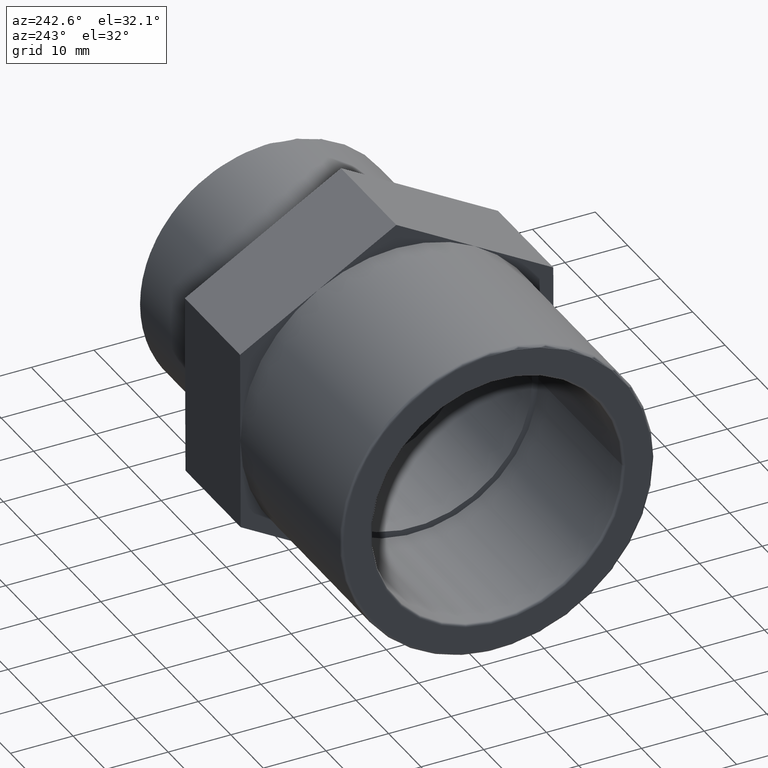
[diagram: clean part render]
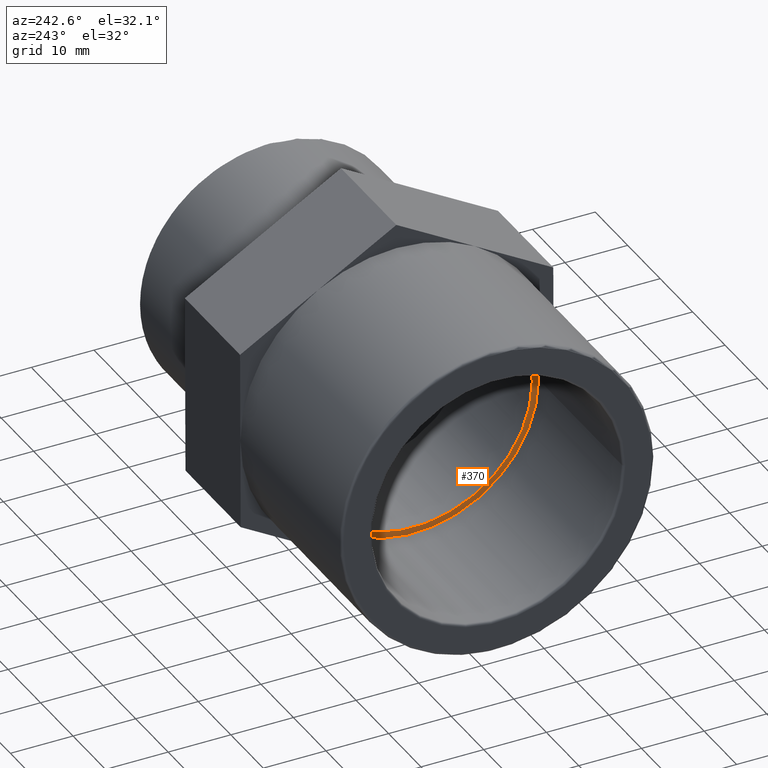
[diagram: same view with one face highlighted and labeled with its STEP entity id]
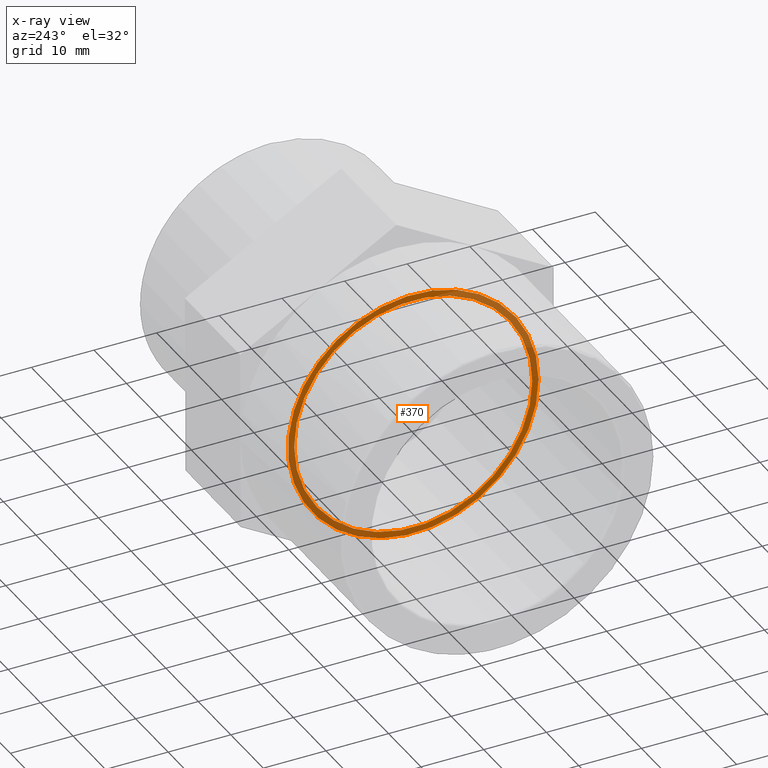
[diagram: x-ray of the same camera — body ghosted, the highlighted face saturated]
A machine part, auxiliary view. The second image highlights one B-rep face of the part: STEP entity #370.
The next image is the same camera in x-ray: the body ghosted, the highlighted face saturated — about 40% of this face is hidden behind the body in this view.
In plain terms, the highlighted planar face has unit normal (-1, -0, 0).
Its self-contained STEP definition (entity closure, byte-faithful):
#30=FACE_BOUND('',#116,.T.);
#53=CIRCLE('',#411,20.);
#55=CIRCLE('',#416,19.);
#79=FACE_OUTER_BOUND('',#115,.T.);
#115=EDGE_LOOP('',(#318));
#116=EDGE_LOOP('',(#319));
#198=VERTEX_POINT('',#624);
#200=VERTEX_POINT('',#631);
#241=EDGE_CURVE('',#198,#198,#53,.T.);
#243=EDGE_CURVE('',#200,#200,#55,.T.);
#318=ORIENTED_EDGE('',*,*,#241,.T.);
#319=ORIENTED_EDGE('',*,*,#243,.F.);
#345=PLANE('',#415);
#370=ADVANCED_FACE('',(#79,#30),#345,.T.);
#411=AXIS2_PLACEMENT_3D('',#625,#517,#518);
#415=AXIS2_PLACEMENT_3D('',#630,#525,#526);
#416=AXIS2_PLACEMENT_3D('',#632,#527,#528);
#517=DIRECTION('center_axis',(-1.,-6.73555739531044E-16,0.));
#518=DIRECTION('ref_axis',(0.,0.,1.));
#525=DIRECTION('center_axis',(-1.,-6.73555739531044E-16,0.));
#526=DIRECTION('ref_axis',(0.,0.,1.));
#527=DIRECTION('center_axis',(-1.,-6.73555739531044E-16,0.));
#528=DIRECTION('ref_axis',(0.,0.,1.));
#624=CARTESIAN_POINT('',(-9.,-20.,0.));
#625=CARTESIAN_POINT('Origin',(-9.00000000000001,3.67394039744199E-16,0.));
#630=CARTESIAN_POINT('Origin',(-9.,-19.,0.));
#631=CARTESIAN_POINT('',(-9.,-19.,0.));
#632=CARTESIAN_POINT('Origin',(-9.00000000000001,3.67394039744199E-16,0.));